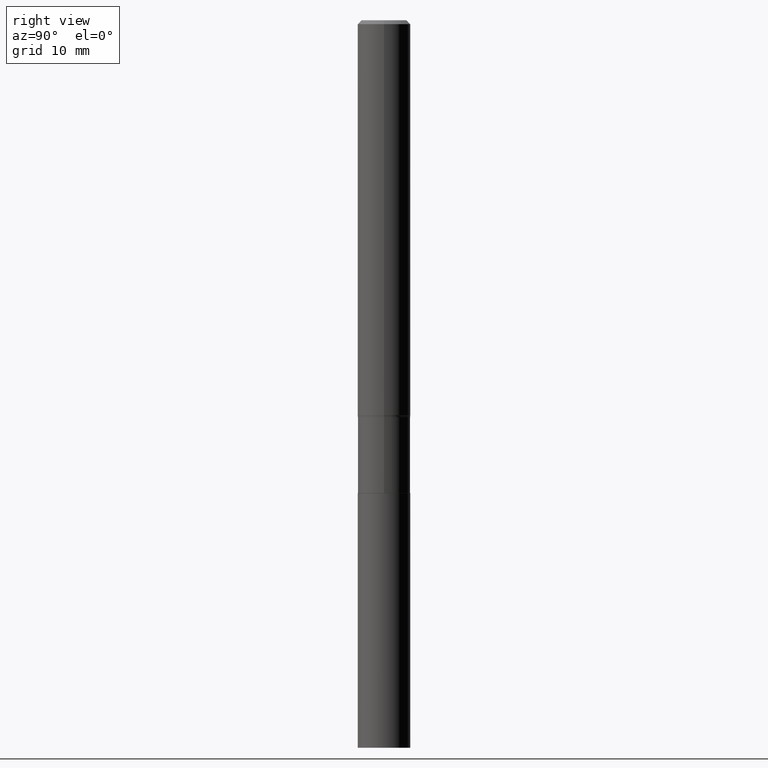
[diagram: clean part render]
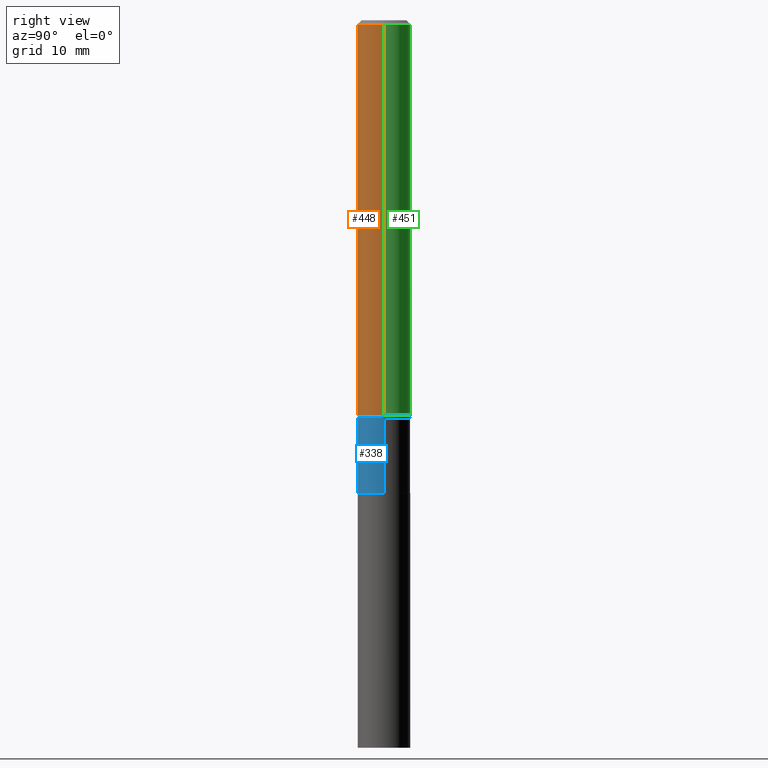
[diagram: same view with three faces highlighted in distinct colors, each labeled with its STEP entity id]
A machine part, right view with three faces highlighted in distinct colors.
Their STEP definitions:

[orange] entity #448 — the highlighted cylindrical surface (edge-blend (fillet) strip) has radius 4.0005 mm, axis along (-0, 0, 1).
#1 = ORIENTED_EDGE ( 'NONE', *, *, #207, .F. ) ;
#20 = CARTESIAN_POINT ( 'NONE',  ( 0.000000000000000000, 0.000000000000000000, 0.000000000000000000 ) ) ;
#23 = EDGE_CURVE ( 'NONE', #184, #157, #86, .T. ) ;
#30 = CARTESIAN_POINT ( 'NONE',  ( 0.1575000000000001676, -1.099816621735588269E-15, 7.679978421878606441E-30 ) ) ;
#34 = DIRECTION ( 'NONE',  ( -2.445468806185136877E-29, 3.491481338843145188E-15, 1.000000000000000000 ) ) ;
#44 = DIRECTION ( 'NONE',  ( -2.445468806185136597E-29, 3.491481338843145583E-15, 1.000000000000000000 ) ) ;
#53 = DIRECTION ( 'NONE',  ( 1.000000000000000000, -6.982962677686265922E-15, 0.000000000000000000 ) ) ;
#66 = CARTESIAN_POINT ( 'NONE',  ( -0.1575000000000001676, 1.119104808822158984E-15, -7.747322767151485392E-30 ) ) ;
#80 = EDGE_CURVE ( 'NONE', #81, #149, #132, .T. ) ;
#81 = VERTEX_POINT ( 'NONE', #334 ) ;
#86 = CIRCLE ( 'NONE', #252, 0.1575000000000000011 ) ;
#90 = DIRECTION ( 'NONE',  ( -2.445468806185136597E-29, 3.491481338843145583E-15, 1.000000000000000000 ) ) ;
#132 = CIRCLE ( 'NONE', #316, 0.1575000000000003064 ) ;
#149 = VERTEX_POINT ( 'NONE', #276 ) ;
#155 = CARTESIAN_POINT ( 'NONE',  ( 5.777420054612412346E-31, -8.248624663016970443E-17, -0.02362500000000010772 ) ) ;
#157 = VERTEX_POINT ( 'NONE', #457 ) ;
#184 = VERTEX_POINT ( 'NONE', #279 ) ;
#187 = DIRECTION ( 'NONE',  ( 1.000000000000000000, -6.982962677686272233E-15, 0.000000000000000000 ) ) ;
#207 = EDGE_CURVE ( 'NONE', #81, #184, #315, .T. ) ;
#212 = ORIENTED_EDGE ( 'NONE', *, *, #80, .T. ) ;
#230 = AXIS2_PLACEMENT_3D ( 'NONE', #20, #384, #422 ) ;
#243 = CYLINDRICAL_SURFACE ( 'NONE', #230, 0.1575000000000001676 ) ;
#252 = AXIS2_PLACEMENT_3D ( 'NONE', #155, #90, #53 ) ;
#254 = VECTOR ( 'NONE', #34, 39.37007874015748143 ) ;
#258 = ORIENTED_EDGE ( 'NONE', *, *, #327, .T. ) ;
#273 = VECTOR ( 'NONE', #310, 39.37007874015748143 ) ;
#274 = FACE_OUTER_BOUND ( 'NONE', #433, .T. ) ;
#276 = CARTESIAN_POINT ( 'NONE',  ( 0.1575000000000003064, -9.307287946322105825E-15, -2.350713215413017476 ) ) ;
#279 = CARTESIAN_POINT ( 'NONE',  ( -0.1575000000000000011, -3.025873976786183506E-15, -0.02362500000000010772 ) ) ;
#298 = CARTESIAN_POINT ( 'NONE',  ( 5.748595840579696355E-29, -8.207471324586519134E-15, -2.350713215413017476 ) ) ;
#310 = DIRECTION ( 'NONE',  ( -2.445468806185136877E-29, 3.491481338843145188E-15, 1.000000000000000000 ) ) ;
#315 = LINE ( 'NONE', #66, #273 ) ;
#316 = AXIS2_PLACEMENT_3D ( 'NONE', #298, #44, #187 ) ;
#327 = EDGE_CURVE ( 'NONE', #149, #157, #467, .T. ) ;
#334 = CARTESIAN_POINT ( 'NONE',  ( -0.1575000000000003064, -7.088366515764358375E-15, -2.350713215413017476 ) ) ;
#384 = DIRECTION ( 'NONE',  ( -2.445468806185136597E-29, 3.491481338843145583E-15, 1.000000000000000000 ) ) ;
#412 = ORIENTED_EDGE ( 'NONE', *, *, #23, .F. ) ;
#422 = DIRECTION ( 'NONE',  ( 1.000000000000000000, -6.982962677686267499E-15, 4.876176775795935232E-29 ) ) ;
#433 = EDGE_LOOP ( 'NONE', ( #1, #212, #258, #412 ) ) ;
#448 = ADVANCED_FACE ( 'NONE', ( #274 ), #243, .T. ) ;
#457 = CARTESIAN_POINT ( 'NONE',  ( 0.1575000000000000011, -1.182302868365756679E-15, -0.02362500000000010772 ) ) ;
#467 = LINE ( 'NONE', #30, #254 ) ;

[blue] entity #338 — the highlighted cylindrical surface (edge-blend (fillet) strip) has radius 3.9687 mm, axis along (-0, 0, 1).
#38 = DIRECTION ( 'NONE',  ( -2.445468806185136877E-29, 3.491481338843145188E-15, 1.000000000000000000 ) ) ;
#74 = DIRECTION ( 'NONE',  ( -2.445468806185136597E-29, 3.491481338843145583E-15, 1.000000000000000000 ) ) ;
#104 = VERTEX_POINT ( 'NONE', #242 ) ;
#113 = VECTOR ( 'NONE', #38, 39.37007874015748143 ) ;
#126 = VERTEX_POINT ( 'NONE', #319 ) ;
#129 = DIRECTION ( 'NONE',  ( -2.445468806185136597E-29, 3.491481338843145583E-15, 1.000000000000000000 ) ) ;
#142 = CIRCLE ( 'NONE', #333, 0.1562499999999999445 ) ;
#145 = DIRECTION ( 'NONE',  ( 1.000000000000000000, -6.982962677686265133E-15, 0.000000000000000000 ) ) ;
#168 = CARTESIAN_POINT ( 'NONE',  ( -0.1562499999999999722, 1.110223024625156343E-15, -7.685836078523288357E-30 ) ) ;
#179 = AXIS2_PLACEMENT_3D ( 'NONE', #428, #129, #317 ) ;
#180 = EDGE_LOOP ( 'NONE', ( #410, #245, #182, #214 ) ) ;
#181 = DIRECTION ( 'NONE',  ( 1.000000000000000000, -6.982962677686266711E-15, 4.876176775795936353E-29 ) ) ;
#182 = ORIENTED_EDGE ( 'NONE', *, *, #389, .T. ) ;
#205 = EDGE_CURVE ( 'NONE', #303, #104, #314, .T. ) ;
#214 = ORIENTED_EDGE ( 'NONE', *, *, #291, .F. ) ;
#215 = CYLINDRICAL_SURFACE ( 'NONE', #421, 0.1562499999999999722 ) ;
#242 = CARTESIAN_POINT ( 'NONE',  ( -0.1562499999999999445, -7.930967902309169374E-15, -2.364800000000000235 ) ) ;
#244 = CARTESIAN_POINT ( 'NONE',  ( 5.783044632866612545E-29, -8.256655070096271445E-15, -2.364800000000000235 ) ) ;
#245 = ORIENTED_EDGE ( 'NONE', *, *, #397, .T. ) ;
#250 = CARTESIAN_POINT ( 'NONE',  ( 0.1562499999999999722, -1.091087918388478976E-15, 7.619026212181148976E-30 ) ) ;
#291 = EDGE_CURVE ( 'NONE', #104, #437, #142, .T. ) ;
#293 = VECTOR ( 'NONE', #427, 39.37007874015748143 ) ;
#303 = VERTEX_POINT ( 'NONE', #393 ) ;
#314 = LINE ( 'NONE', #168, #293 ) ;
#317 = DIRECTION ( 'NONE',  ( 1.000000000000000000, -6.982962677686262766E-15, 0.000000000000000000 ) ) ;
#319 = CARTESIAN_POINT ( 'NONE',  ( 0.1562500000000000000, -1.091681470216085877E-14, -2.814200000000000479 ) ) ;
#333 = AXIS2_PLACEMENT_3D ( 'NONE', #244, #74, #145 ) ;
#338 = ADVANCED_FACE ( 'NONE', ( #429 ), #215, .T. ) ;
#356 = DIRECTION ( 'NONE',  ( -2.445468806185136597E-29, 3.491481338843145583E-15, 1.000000000000000000 ) ) ;
#389 = EDGE_CURVE ( 'NONE', #126, #437, #436, .T. ) ;
#393 = CARTESIAN_POINT ( 'NONE',  ( -0.1562500000000000000, -7.930967902309169374E-15, -2.814200000000000479 ) ) ;
#395 = CARTESIAN_POINT ( 'NONE',  ( 0.000000000000000000, 0.000000000000000000, 0.000000000000000000 ) ) ;
#397 = EDGE_CURVE ( 'NONE', #303, #126, #450, .T. ) ;
#410 = ORIENTED_EDGE ( 'NONE', *, *, #205, .F. ) ;
#418 = CARTESIAN_POINT ( 'NONE',  ( 0.1562499999999999445, -9.347742988484751407E-15, -2.364800000000000235 ) ) ;
#421 = AXIS2_PLACEMENT_3D ( 'NONE', #395, #356, #181 ) ;
#427 = DIRECTION ( 'NONE',  ( -2.445468806185136877E-29, 3.491481338843145188E-15, 1.000000000000000000 ) ) ;
#428 = CARTESIAN_POINT ( 'NONE',  ( 6.882038314366211531E-29, -9.825726783772380384E-15, -2.814200000000000479 ) ) ;
#429 = FACE_OUTER_BOUND ( 'NONE', #180, .T. ) ;
#436 = LINE ( 'NONE', #250, #113 ) ;
#437 = VERTEX_POINT ( 'NONE', #418 ) ;
#450 = CIRCLE ( 'NONE', #179, 0.1562500000000000000 ) ;

[green] entity #451 — the highlighted cylindrical surface (edge-blend (fillet) strip) has radius 4.0005 mm, axis along (-0, 0, 1).
#3 = CIRCLE ( 'NONE', #120, 0.1575000000000003064 ) ;
#8 = EDGE_CURVE ( 'NONE', #157, #184, #382, .T. ) ;
#22 = DIRECTION ( 'NONE',  ( 1.000000000000000000, -6.982962677686267499E-15, 4.876176775795935232E-29 ) ) ;
#30 = CARTESIAN_POINT ( 'NONE',  ( 0.1575000000000001676, -1.099816621735588269E-15, 7.679978421878606441E-30 ) ) ;
#34 = DIRECTION ( 'NONE',  ( -2.445468806185136877E-29, 3.491481338843145188E-15, 1.000000000000000000 ) ) ;
#48 = DIRECTION ( 'NONE',  ( -2.445468806185136597E-29, 3.491481338843145583E-15, 1.000000000000000000 ) ) ;
#56 = AXIS2_PLACEMENT_3D ( 'NONE', #378, #48, #413 ) ;
#65 = FACE_OUTER_BOUND ( 'NONE', #297, .T. ) ;
#66 = CARTESIAN_POINT ( 'NONE',  ( -0.1575000000000001676, 1.119104808822158984E-15, -7.747322767151485392E-30 ) ) ;
#81 = VERTEX_POINT ( 'NONE', #334 ) ;
#83 = ORIENTED_EDGE ( 'NONE', *, *, #8, .F. ) ;
#120 = AXIS2_PLACEMENT_3D ( 'NONE', #322, #321, #290 ) ;
#146 = ORIENTED_EDGE ( 'NONE', *, *, #207, .T. ) ;
#149 = VERTEX_POINT ( 'NONE', #276 ) ;
#157 = VERTEX_POINT ( 'NONE', #457 ) ;
#172 = CARTESIAN_POINT ( 'NONE',  ( 0.000000000000000000, 0.000000000000000000, 0.000000000000000000 ) ) ;
#184 = VERTEX_POINT ( 'NONE', #279 ) ;
#202 = DIRECTION ( 'NONE',  ( -2.445468806185136597E-29, 3.491481338843145583E-15, 1.000000000000000000 ) ) ;
#207 = EDGE_CURVE ( 'NONE', #81, #184, #315, .T. ) ;
#224 = ORIENTED_EDGE ( 'NONE', *, *, #327, .F. ) ;
#254 = VECTOR ( 'NONE', #34, 39.37007874015748143 ) ;
#273 = VECTOR ( 'NONE', #310, 39.37007874015748143 ) ;
#276 = CARTESIAN_POINT ( 'NONE',  ( 0.1575000000000003064, -9.307287946322105825E-15, -2.350713215413017476 ) ) ;
#279 = CARTESIAN_POINT ( 'NONE',  ( -0.1575000000000000011, -3.025873976786183506E-15, -0.02362500000000010772 ) ) ;
#290 = DIRECTION ( 'NONE',  ( 1.000000000000000000, -6.982962677686272233E-15, 0.000000000000000000 ) ) ;
#297 = EDGE_LOOP ( 'NONE', ( #407, #146, #83, #224 ) ) ;
#300 = EDGE_CURVE ( 'NONE', #149, #81, #3, .T. ) ;
#310 = DIRECTION ( 'NONE',  ( -2.445468806185136877E-29, 3.491481338843145188E-15, 1.000000000000000000 ) ) ;
#315 = LINE ( 'NONE', #66, #273 ) ;
#321 = DIRECTION ( 'NONE',  ( -2.445468806185136597E-29, 3.491481338843145583E-15, 1.000000000000000000 ) ) ;
#322 = CARTESIAN_POINT ( 'NONE',  ( 5.748595840579696355E-29, -8.207471324586519134E-15, -2.350713215413017476 ) ) ;
#327 = EDGE_CURVE ( 'NONE', #149, #157, #467, .T. ) ;
#334 = CARTESIAN_POINT ( 'NONE',  ( -0.1575000000000003064, -7.088366515764358375E-15, -2.350713215413017476 ) ) ;
#346 = CYLINDRICAL_SURFACE ( 'NONE', #430, 0.1575000000000001676 ) ;
#378 = CARTESIAN_POINT ( 'NONE',  ( 5.777420054612412346E-31, -8.248624663016970443E-17, -0.02362500000000010772 ) ) ;
#382 = CIRCLE ( 'NONE', #56, 0.1575000000000000011 ) ;
#407 = ORIENTED_EDGE ( 'NONE', *, *, #300, .T. ) ;
#413 = DIRECTION ( 'NONE',  ( 1.000000000000000000, -6.982962677686265922E-15, 0.000000000000000000 ) ) ;
#430 = AXIS2_PLACEMENT_3D ( 'NONE', #172, #202, #22 ) ;
#451 = ADVANCED_FACE ( 'NONE', ( #65 ), #346, .T. ) ;
#457 = CARTESIAN_POINT ( 'NONE',  ( 0.1575000000000000011, -1.182302868365756679E-15, -0.02362500000000010772 ) ) ;
#467 = LINE ( 'NONE', #30, #254 ) ;